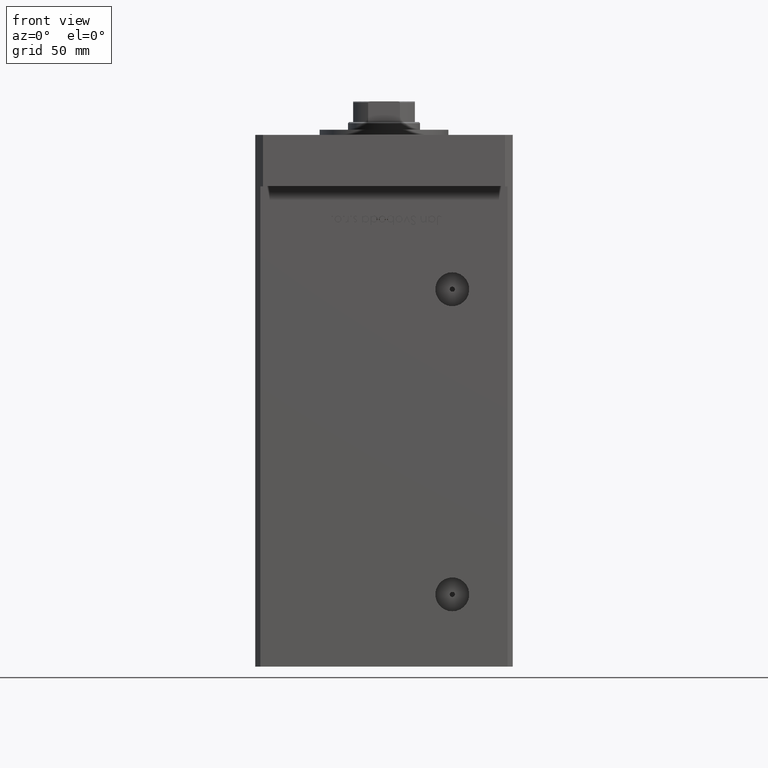
[diagram: clean part render]
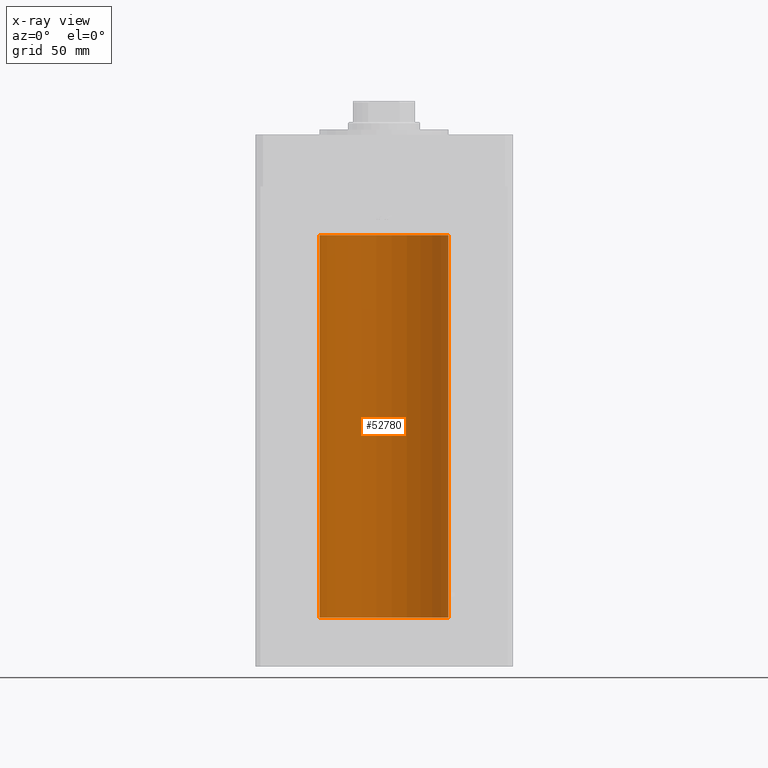
[diagram: x-ray — body ghosted, one internal face saturated and labeled with its STEP entity id]
A machine part, front view, then the same camera in x-ray: the body is ghosted and one INTERNAL B-rep face — a face not visible from any outside direction — is saturated and labeled: STEP entity #52780.
In plain terms, the highlighted cylindrical surface (partial cylindrical patch) has radius 25 mm, axis along (-0, -0, -1).
Its self-contained STEP definition (entity closure, byte-faithful):
#191 = CIRCLE ( 'NONE', #5448, 25.00000000000000000 ) ;
#1040 = VECTOR ( 'NONE', #7643, 1000.000000000000000 ) ;
#1642 = LINE ( 'NONE', #47994, #14303 ) ;
#2024 = AXIS2_PLACEMENT_3D ( 'NONE', #40947, #40119, #23503 ) ;
#3030 = VERTEX_POINT ( 'NONE', #14546 ) ;
#4045 = VERTEX_POINT ( 'NONE', #31782 ) ;
#5448 = AXIS2_PLACEMENT_3D ( 'NONE', #45343, #28968, #41246 ) ;
#6378 = ORIENTED_EDGE ( 'NONE', *, *, #34781, .T. ) ;
#7643 = DIRECTION ( 'NONE',  ( -0.000000000000000000, -0.000000000000000000, -1.000000000000000000 ) ) ;
#10755 = CIRCLE ( 'NONE', #2024, 25.00000000000000000 ) ;
#14303 = VECTOR ( 'NONE', #51532, 1000.000000000000000 ) ;
#14546 = CARTESIAN_POINT ( 'NONE',  ( 25.00000000000000000, 3.061616997868383043E-15, 0.000000000000000000 ) ) ;
#14562 = EDGE_CURVE ( 'NONE', #41728, #3030, #19348, .T. ) ;
#15866 = EDGE_CURVE ( 'NONE', #3030, #27233, #191, .T. ) ;
#18148 = CYLINDRICAL_SURFACE ( 'NONE', #41719, 25.00000000000000000 ) ;
#19348 = LINE ( 'NONE', #32438, #1040 ) ;
#20132 = ORIENTED_EDGE ( 'NONE', *, *, #15866, .F. ) ;
#22795 = DIRECTION ( 'NONE',  ( -1.000000000000000000, 0.000000000000000000, 0.000000000000000000 ) ) ;
#23503 = DIRECTION ( 'NONE',  ( 1.000000000000000000, 0.000000000000000000, 0.000000000000000000 ) ) ;
#24842 = CARTESIAN_POINT ( 'NONE',  ( -25.00000000000000000, 0.000000000000000000, 0.000000000000000000 ) ) ;
#26334 = FACE_OUTER_BOUND ( 'NONE', #31857, .T. ) ;
#27233 = VERTEX_POINT ( 'NONE', #24842 ) ;
#28968 = DIRECTION ( 'NONE',  ( -0.000000000000000000, 0.000000000000000000, 1.000000000000000000 ) ) ;
#31726 = CARTESIAN_POINT ( 'NONE',  ( 25.00000000000000000, 3.061616997868383043E-15, 148.5000000000000000 ) ) ;
#31782 = CARTESIAN_POINT ( 'NONE',  ( -25.00000000000000000, 0.000000000000000000, 148.5000000000000000 ) ) ;
#31857 = EDGE_LOOP ( 'NONE', ( #37297, #35904, #6378, #20132 ) ) ;
#32438 = CARTESIAN_POINT ( 'NONE',  ( 25.00000000000000000, 3.061616997868383043E-15, 148.5000000000000000 ) ) ;
#32640 = EDGE_CURVE ( 'NONE', #41728, #4045, #10755, .T. ) ;
#34781 = EDGE_CURVE ( 'NONE', #4045, #27233, #1642, .T. ) ;
#35310 = DIRECTION ( 'NONE',  ( -0.000000000000000000, -0.000000000000000000, -1.000000000000000000 ) ) ;
#35904 = ORIENTED_EDGE ( 'NONE', *, *, #32640, .T. ) ;
#37297 = ORIENTED_EDGE ( 'NONE', *, *, #14562, .F. ) ;
#38313 = CARTESIAN_POINT ( 'NONE',  ( 0.000000000000000000, 0.000000000000000000, 148.5000000000000000 ) ) ;
#40119 = DIRECTION ( 'NONE',  ( -0.000000000000000000, 0.000000000000000000, 1.000000000000000000 ) ) ;
#40947 = CARTESIAN_POINT ( 'NONE',  ( 0.000000000000000000, 0.000000000000000000, 148.5000000000000000 ) ) ;
#41246 = DIRECTION ( 'NONE',  ( 1.000000000000000000, 0.000000000000000000, 0.000000000000000000 ) ) ;
#41719 = AXIS2_PLACEMENT_3D ( 'NONE', #38313, #35310, #22795 ) ;
#41728 = VERTEX_POINT ( 'NONE', #31726 ) ;
#45343 = CARTESIAN_POINT ( 'NONE',  ( 0.000000000000000000, 0.000000000000000000, 0.000000000000000000 ) ) ;
#47994 = CARTESIAN_POINT ( 'NONE',  ( -25.00000000000000000, 0.000000000000000000, 148.5000000000000000 ) ) ;
#51532 = DIRECTION ( 'NONE',  ( -0.000000000000000000, -0.000000000000000000, -1.000000000000000000 ) ) ;
#52780 = ADVANCED_FACE ( 'NONE', ( #26334 ), #18148, .F. ) ;